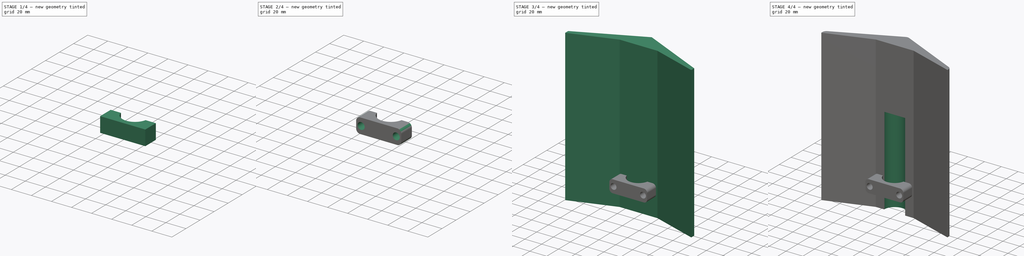
[diagram: build sequence overview — one tinted view per stage of 4, left to right]
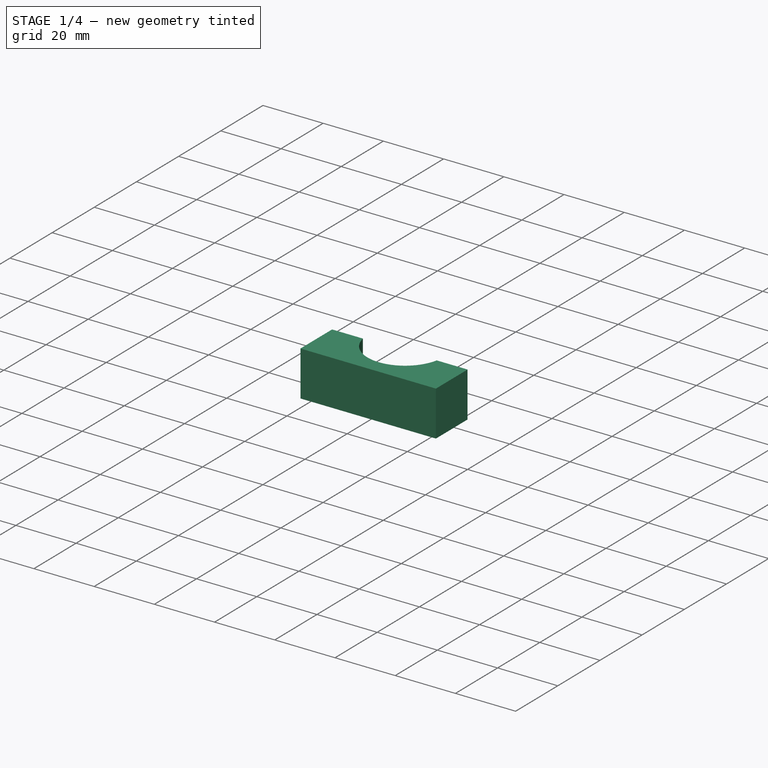
[diagram: stage 1 of 4 — iso view after this stage's code; geometry added in this stage tinted green]
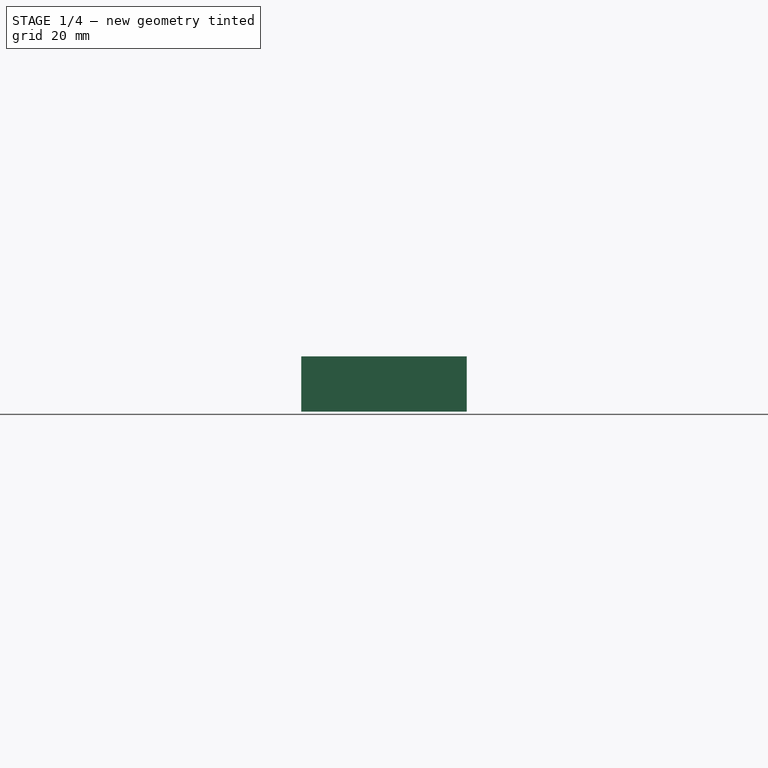
[diagram: stage 1 of 4 — front view after this stage's code; geometry added in this stage tinted green]
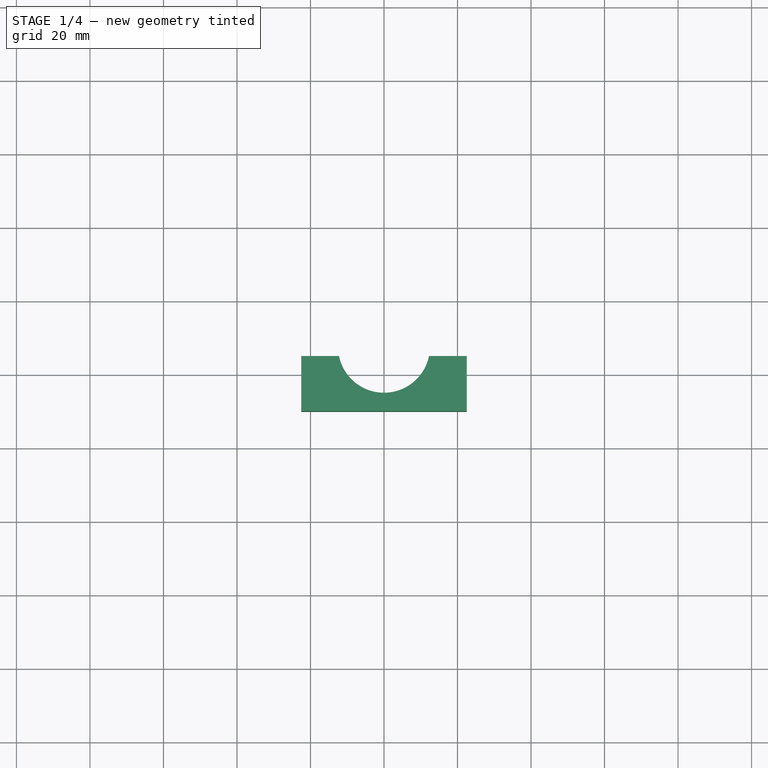
[diagram: stage 1 of 4 — top view after this stage's code; geometry added in this stage tinted green]
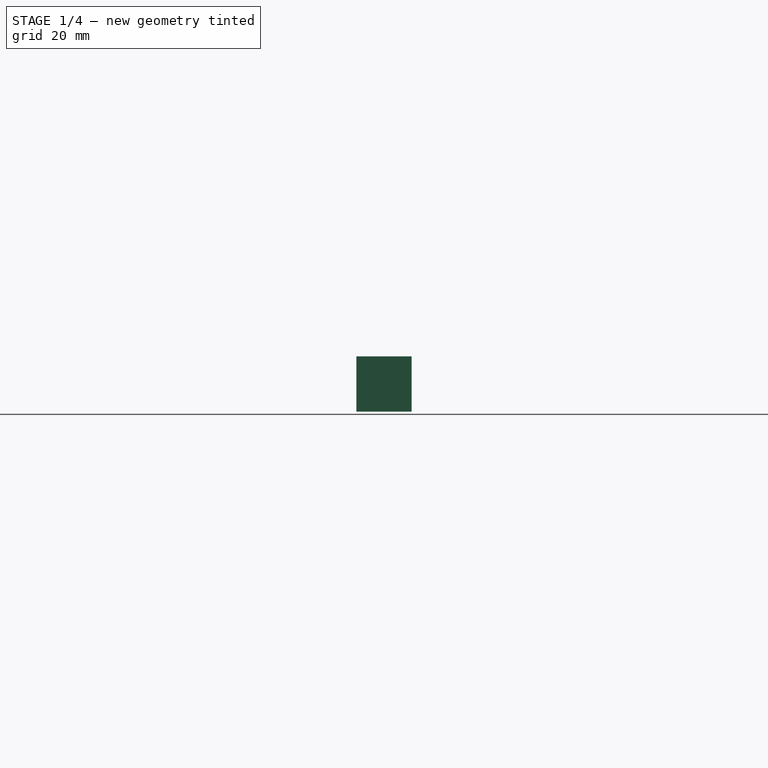
[diagram: stage 1 of 4 — right view after this stage's code; geometry added in this stage tinted green]
FCSTD DOCUMENT  (FreeCAD 0.20R29410 (Git))
Label: CamRoof
License: All rights reserved
LicenseURL: http://en.wikipedia.org/wiki/All_rights_reserved
objects: Sketcher::SketchObject×6, PartDesign::Pad×3, PartDesign::Pocket×3, App::MeasureDistance×2, PartDesign::Fillet×2, PartDesign::Body×2, Spreadsheet::Sheet×1, PartDesign::Hole×1
note: 26 computed .brp shape members not serialized (recipe doc carries the construction recipe); baked Part::Feature solids carry a one-line shape summary decoded from their .brp

FEATURE [Sketcher::SketchObject] Sketch003
  FullyConstrained = true
  MapMode = 5
  Support = -> [XY_Plane001]
  sketch-geometry (4):
    g0: LineSegment StartX=-22.5 StartY=-15 StartZ=0 EndX=22.5 EndY=-15 EndZ=0
    g1: LineSegment StartX=22.5 StartY=-15 StartZ=0 EndX=22.5 EndY=-30 EndZ=0
    g2: LineSegment StartX=22.5 StartY=-30 StartZ=0 EndX=-22.5 EndY=-30 EndZ=0
    g3: LineSegment StartX=-22.5 StartY=-30 StartZ=0 EndX=-22.5 EndY=-15 EndZ=0
  constraints (11):
    c: Coincident(g0,g1)
    c: Coincident(g1,g2)
    c: Coincident(g2,g3)
    c: Coincident(g3,g0)
    c: Horizontal(g2)
    c: Vertical(g1)
    c: Vertical(g3)
    c: DistanceY(g0,g-1) = 15
    c: DistanceX(g0,g0) = 45
    c: DistanceY(g3,g3) = 15
    c: Symmetric(g0,g0,g-2)
FEATURE [PartDesign::Pad] Pad002
  Direction = (0,0,1)
  Length = 15
  Length2 = 10
  Midplane = true
  Profile = -> Sketch003
  ReferenceAxis = -> Sketch003 [N_Axis]
  Type = 0
FEATURE [PartDesign::Pocket] Pocket002
  BaseFeature = -> Pad002
  Direction = (0,0,-1)
  Length = 20
  Length2 = 5
  Midplane = true
  Profile = -> Sketch004
  ReferenceAxis = -> Sketch004 [N_Axis]
  Type = 0
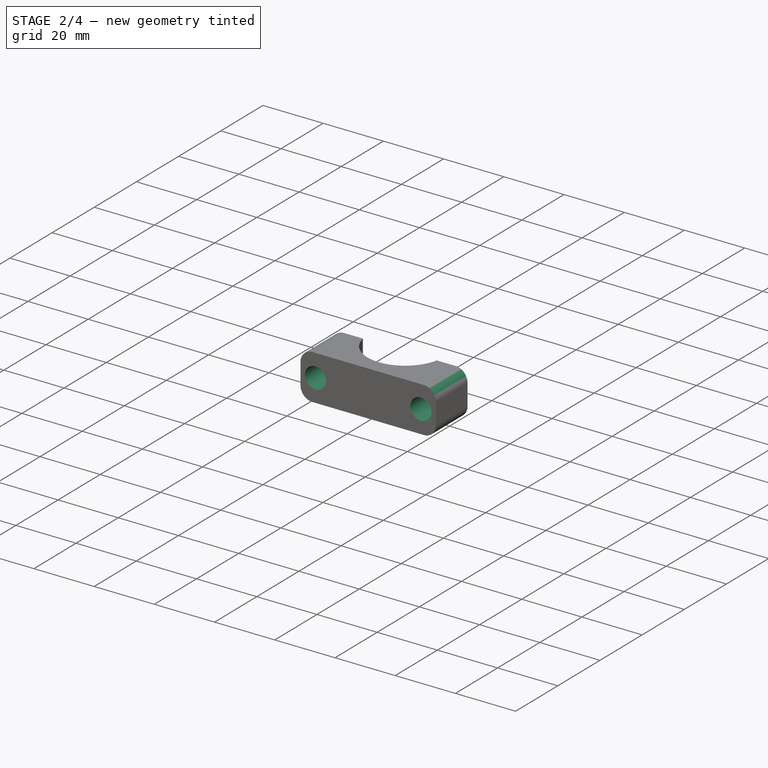
[diagram: stage 2 of 4 — iso view after this stage's code; geometry added in this stage tinted green]
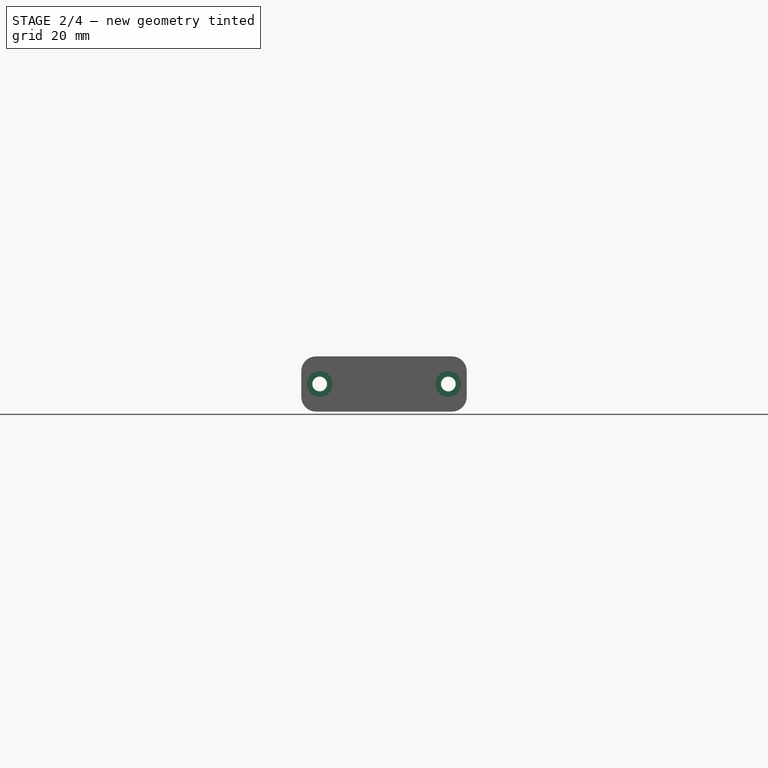
[diagram: stage 2 of 4 — front view after this stage's code; geometry added in this stage tinted green]
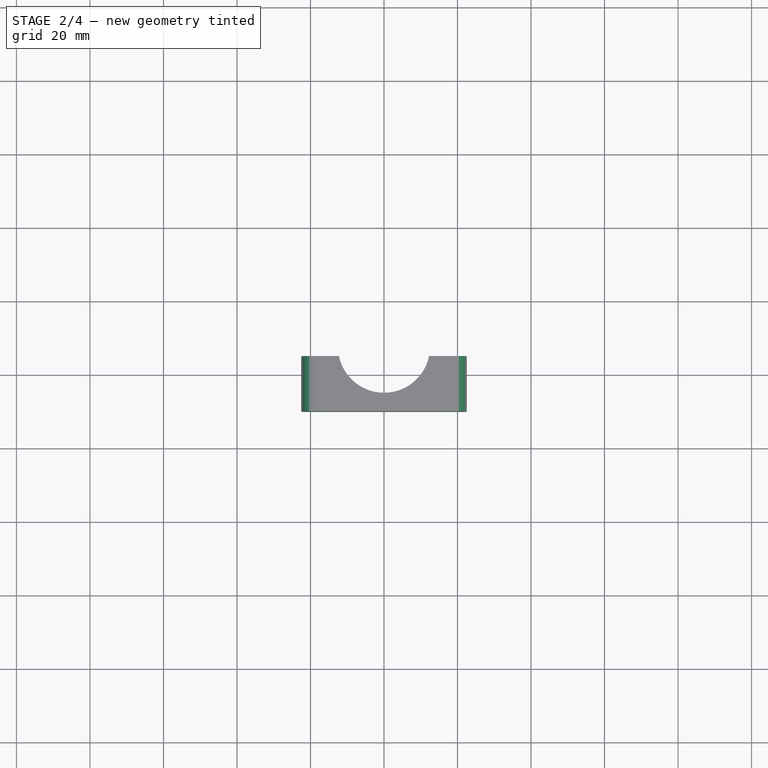
[diagram: stage 2 of 4 — top view after this stage's code; geometry added in this stage tinted green]
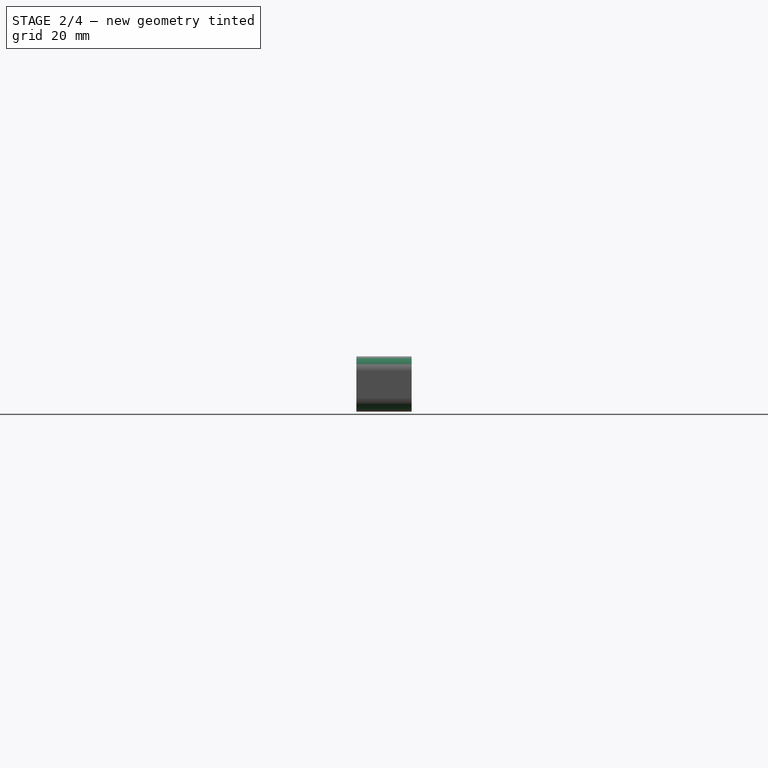
[diagram: stage 2 of 4 — right view after this stage's code; geometry added in this stage tinted green]
FEATURE [Sketcher::SketchObject] Sketch005
  FullyConstrained = true
  MapMode = 5
  Placement = pos=(0,-30,0) rot=(1,0,0;1.5708rad)
  Support = -> [Pocket002]
  expr: Constraints[1] = <<measurements>>.diameter / 2 + 5
  sketch-geometry (2):
    g0: Circle CenterX=-17.5 CenterY=0 CenterZ=0 NormalX=0 NormalY=0 NormalZ=1 AngleXU=0 Radius=2
    g1: Circle CenterX=17.5 CenterY=0 CenterZ=0 NormalX=0 NormalY=0 NormalZ=1 AngleXU=0 Radius=2
  constraints (5):
    c: PointOnObject(g0,g-1)
    c: DistanceX(g0,g-1) = 17.5
    c: Symmetric(g0,g1,g-2)
    c: Diameter(g0) = 4
    c: Equal(g0,g1)
FEATURE [PartDesign::Hole] Hole
  BaseFeature = -> Pocket002
  CustomThreadClearance = 0
  Depth = 25
  DepthType = 0
  Diameter = 4
  DrillForDepth = false
  DrillPoint = 1
  DrillPointAngle = 118
  HoleCutCountersinkAngle = 90
  HoleCutCustomValues = false
  HoleCutDepth = 10
  HoleCutDiameter = 7
  HoleCutType = 1
  ModelThread = false
  Profile = -> Sketch005
  Tapered = false
  TaperedAngle = 90
  ThreadClass = 0
  ThreadDepth = 25
  ThreadDepthType = 0
  ThreadDirection = 0
  ThreadFit = 0
  ThreadSize = 0
  ThreadType = 0
  Threaded = false
  UseCustomThreadClearance = false
FEATURE [PartDesign::Body] Body  label="Roof"
  Group = -> [Sketch,Pad,Pad001,Sketch002,Pocket001,Sketch001,Pocket,Fillet]
  Origin = -> Origin
  Tip = -> Fillet
FEATURE [PartDesign::Fillet] Fillet001
  Base = -> Hole [Edge12,Edge10,Edge16,Edge8]
  BaseFeature = -> Hole
  Radius = 4
  SupportTransform = false
  UseAllEdges = false
FEATURE [PartDesign::Body] Body001  label="fastening bracket"
  Group = -> [Sketch003,Pad002,Sketch004,Pocket002,Sketch005,Hole,Fillet001]
  Origin = -> Origin001
  Tip = -> Fillet001
FEATURE [App::MeasureDistance] Distance001  label="Distance: 180,00 mm"
  Distance = 180
  P1 = (-75,-30,150)
  P2 = (-75,-30,-30)
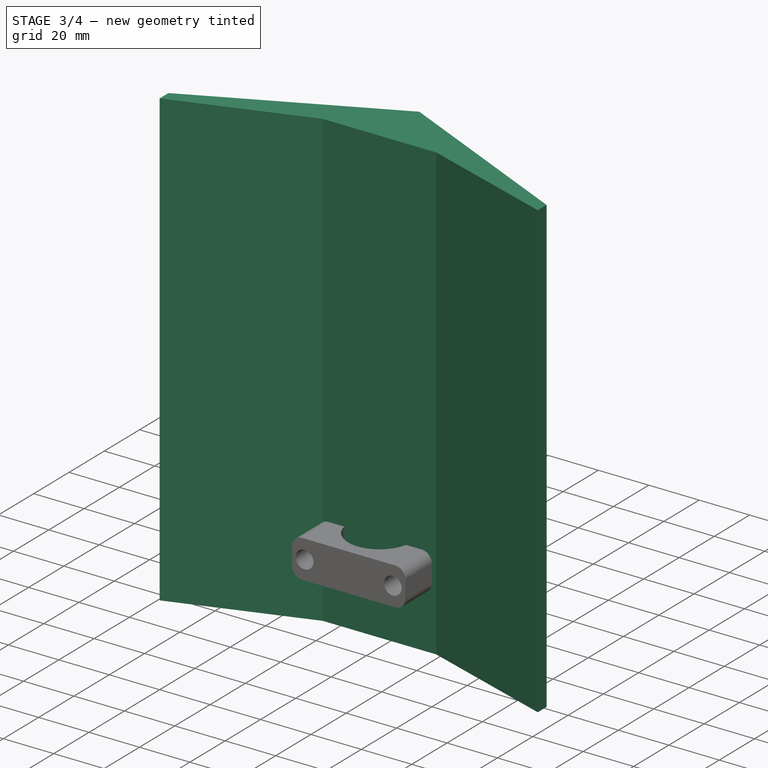
[diagram: stage 3 of 4 — iso view after this stage's code; geometry added in this stage tinted green]
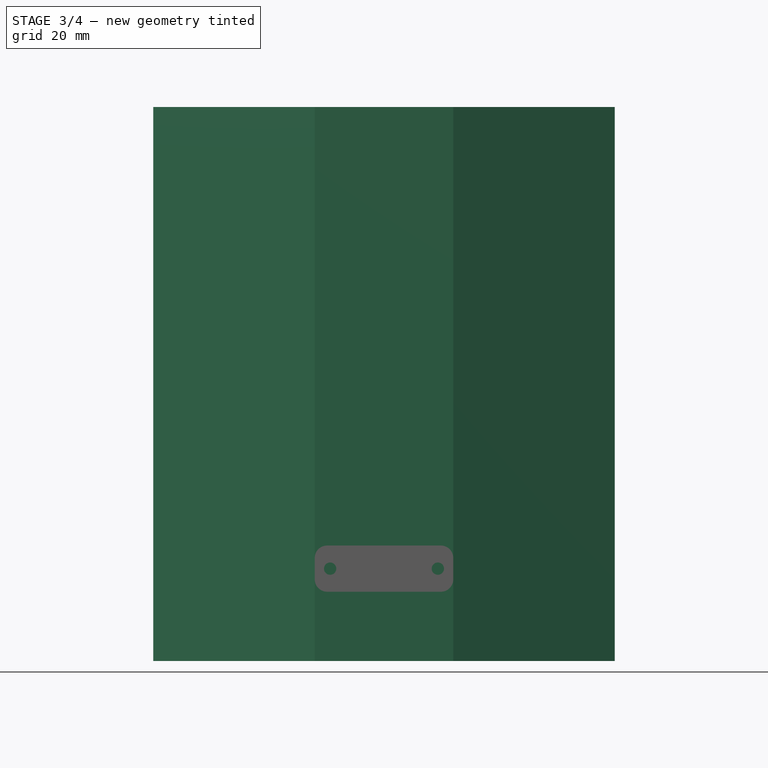
[diagram: stage 3 of 4 — front view after this stage's code; geometry added in this stage tinted green]
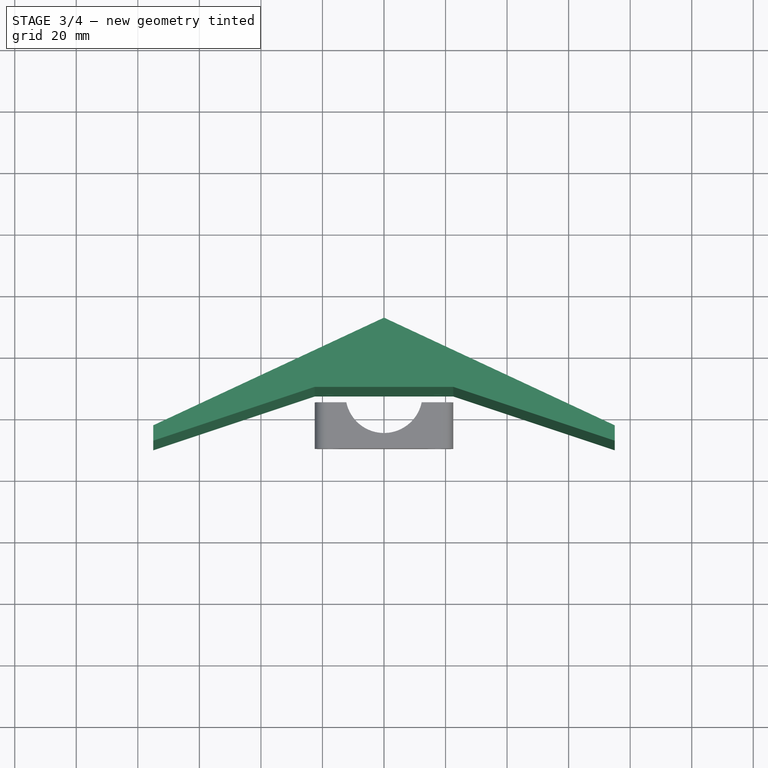
[diagram: stage 3 of 4 — top view after this stage's code; geometry added in this stage tinted green]
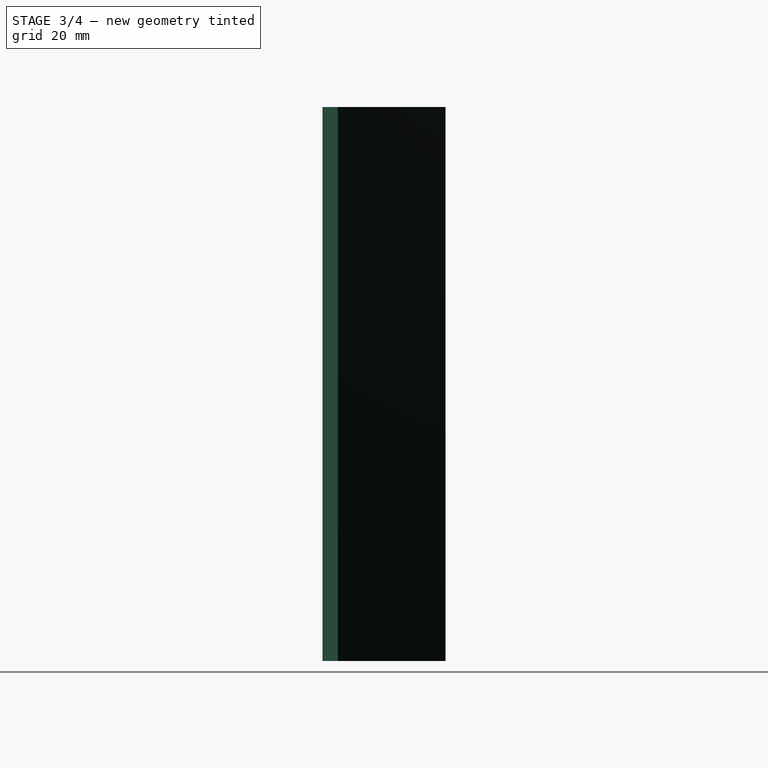
[diagram: stage 3 of 4 — right view after this stage's code; geometry added in this stage tinted green]
FEATURE [Spreadsheet::Sheet] Spreadsheet  label="measurements"
  cells = A1(front_length)=150; A2(back_length)=30; A3(diameter)=25; A4(width)=150; A5=10
FEATURE [Sketcher::SketchObject] Sketch
  FullyConstrained = true
  MapMode = 5
  Support = -> [XY_Plane]
  expr: Constraints[11] = <<measurements>>.width / 2
  expr: Constraints[18] = <<measurements>>.diameter / 2
  expr: Constraints[20] = .Constraints.under_width / 2
  expr: Constraints[4] = <<measurements>>.width
  sketch-geometry (7):
    g0: LineSegment StartX=-75 StartY=-25 StartZ=0 EndX=0 EndY=10 EndZ=0
    g1: LineSegment StartX=0 StartY=10 StartZ=0 EndX=75 EndY=-25 EndZ=0
    g2: LineSegment StartX=-75 StartY=-25 StartZ=0 EndX=-75 EndY=-30 EndZ=0
    g3: LineSegment StartX=75 StartY=-25 StartZ=0 EndX=75 EndY=-30 EndZ=0
    g4: LineSegment StartX=-75 StartY=-30 StartZ=0 EndX=-22.5 EndY=-12.5 EndZ=0
    g5: LineSegment StartX=-22.5 StartY=-12.5 StartZ=0 EndX=22.5 EndY=-12.5 EndZ=0
    g6: LineSegment StartX=22.5 StartY=-12.5 StartZ=0 EndX=75 EndY=-30 EndZ=0
  constraints (21):
    c: PointOnObject(g0,g-2)
    c: Coincident(g0,g1)
    c: Coincident(g2,g0)
    c: Coincident(g3,g1)
    c: DistanceX(g0,g1) = 150
    c: Vertical(g2,g0)
    c: Vertical(g3,g1)
    c: DistanceY(g-1,g0) = 10
    c: DistanceY(g2,g2) = 5
    c: Equal(g3,g2)
    c: DistanceY(g2,g0) = 40
    c: DistanceX(g0,g0) = 75
    c: Horizontal(g3,g2)
    c: Coincident(g2,g4)
    c: Coincident(g4,g5)
    c: Horizontal(g5)
    c: Coincident(g5,g6)
    c: Coincident(g6,g3)
    c: DistanceY(g4,g-1) = 12.5
    c: DistanceX(g5,g5) = 45  'under_width'
    c: DistanceX(g4,g0) = 22.5
FEATURE [PartDesign::Pad] Pad
  Direction = (0,0,1)
  Length = 150
  Length2 = 10
  Profile = -> Sketch
  ReferenceAxis = -> Sketch [N_Axis]
  Type = 0
  expr: Length = <<measurements>>.front_length
FEATURE [PartDesign::Pad] Pad001
  BaseFeature = -> Pad
  Direction = (0,0,1)
  Length = 30
  Length2 = 10
  Profile = -> Sketch
  ReferenceAxis = -> Sketch [N_Axis]
  Reversed = true
  Type = 0
  expr: Length = <<measurements>>.back_length
FEATURE [Sketcher::SketchObject] Sketch001
  FullyConstrained = true
  MapMode = 5
  Support = -> [XY_Plane]
  expr: Constraints[1] = <<measurements>>.diameter
  expr: Constraints[2] = <<measurements>>.diameter / 2
  sketch-geometry (1):
    g0: Circle CenterX=0 CenterY=-12.5 CenterZ=0 NormalX=0 NormalY=0 NormalZ=1 AngleXU=0 Radius=12.5
  constraints (3):
    c: PointOnObject(g0,g-2)
    c: Diameter(g0) = 25
    c: DistanceY(g0,g-1) = 12.5
FEATURE [Sketcher::SketchObject] Sketch002
  FullyConstrained = true
  MapMode = 5
  Placement = pos=(0,0,0) rot=(1,0,0;1.5708rad)
  Support = -> [XZ_Plane]
  expr: Constraints[4] = <<measurements>>.diameter / 2 + 5
  expr: Constraints[5] = <<measurements>>.diameter / 2 + 5
  sketch-geometry (2):
    g0: Circle CenterX=17.5 CenterY=0 CenterZ=0 NormalX=0 NormalY=0 NormalZ=1 AngleXU=0 Radius=1.5
    g1: Circle CenterX=-17.5 CenterY=0 CenterZ=0 NormalX=0 NormalY=0 NormalZ=1 AngleXU=0 Radius=1.5
  constraints (6):
    c: PointOnObject(g0,g-1)
    c: PointOnObject(g1,g-1)
    c: Diameter(g0) = 3
    c: Equal(g0,g1)
    c: DistanceX(g1,g-1) = 17.5
    c: DistanceX(g-1,g0) = 17.5
FEATURE [PartDesign::Pocket] Pocket001
  BaseFeature = -> Pad001
  Direction = (0,1,2e-16)
  Length = 5
  Length2 = 5
  Profile = -> Sketch002
  ReferenceAxis = -> Sketch002 [N_Axis]
  Reversed = true
  Type = 1
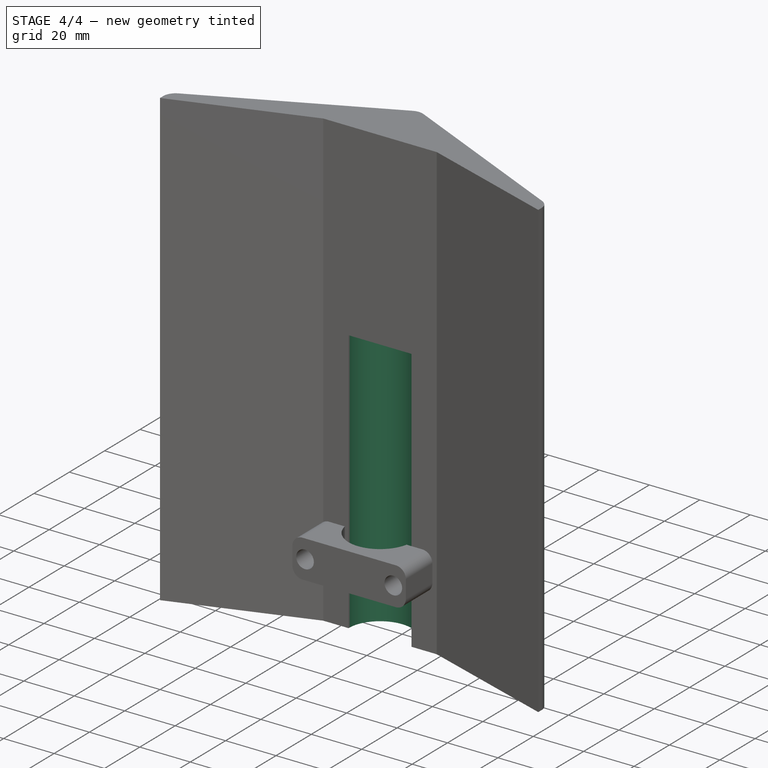
[diagram: stage 4 of 4 — iso view after this stage's code; geometry added in this stage tinted green]
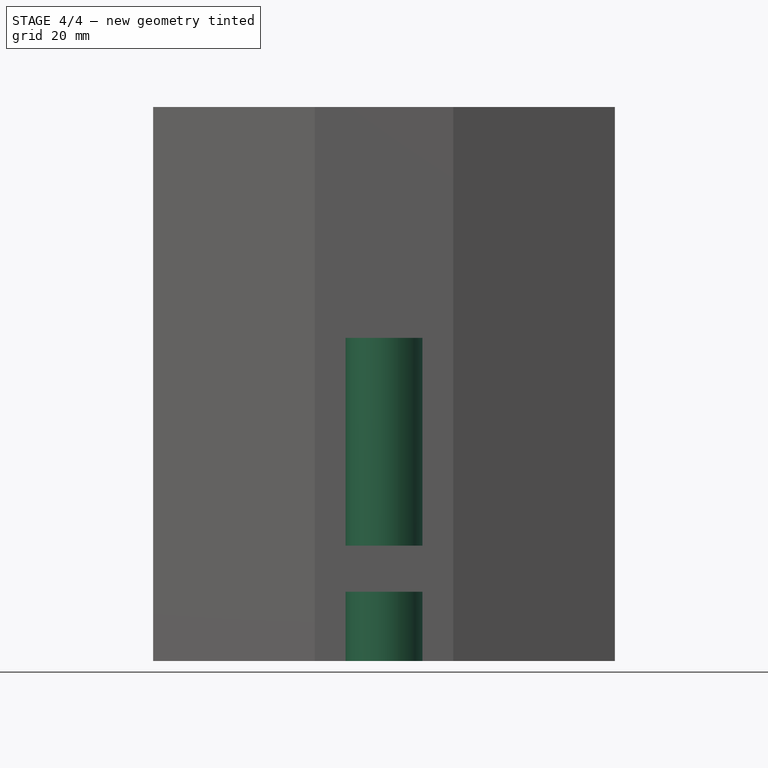
[diagram: stage 4 of 4 — front view after this stage's code; geometry added in this stage tinted green]
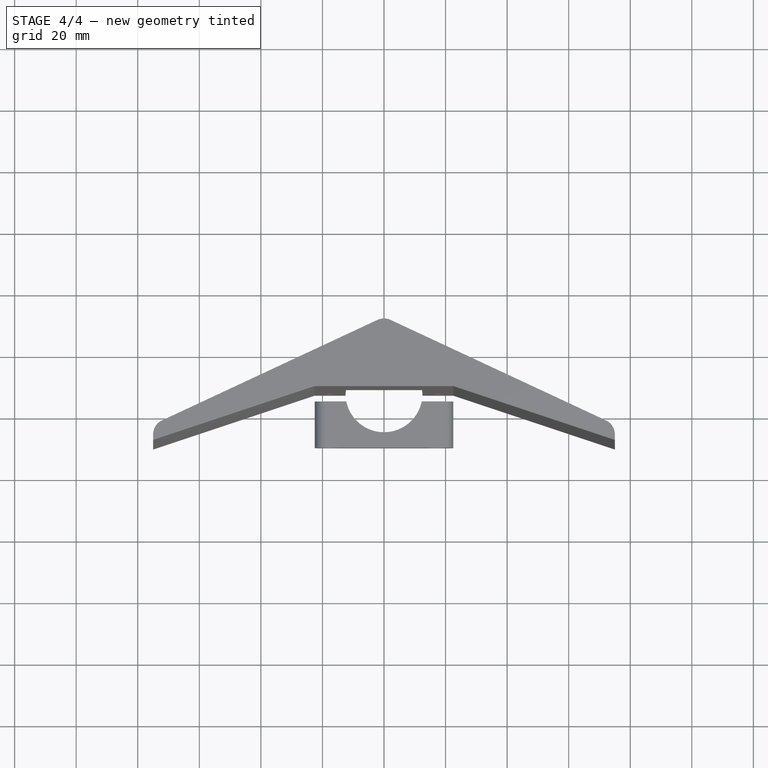
[diagram: stage 4 of 4 — top view after this stage's code; geometry added in this stage tinted green]
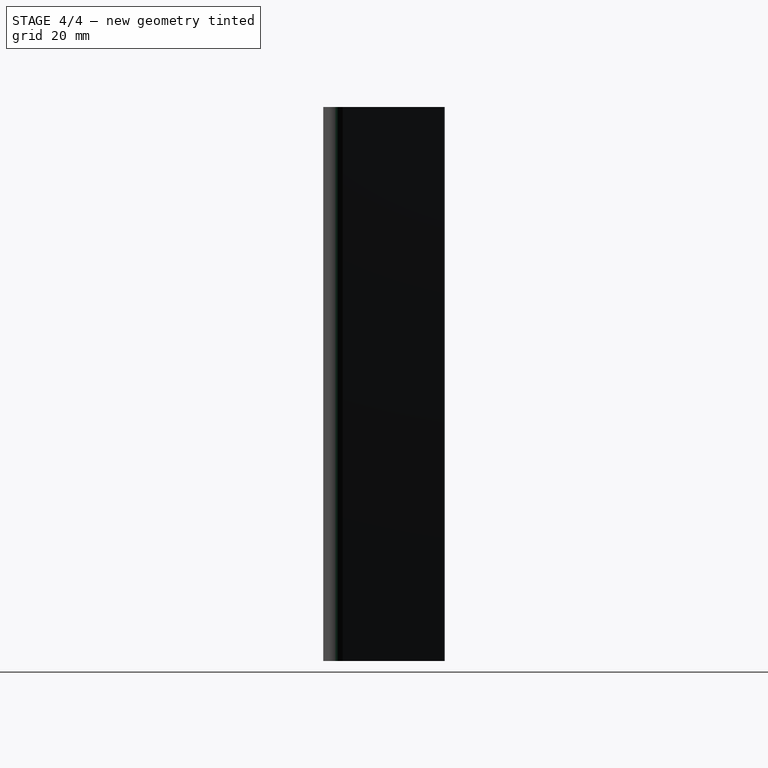
[diagram: stage 4 of 4 — right view after this stage's code; geometry added in this stage tinted green]
FEATURE [Sketcher::SketchObject] Sketch004
  FullyConstrained = true
  MapMode = 5
  Support = -> [XY_Plane001]
  expr: Constraints[1] = <<measurements>>.diameter
  expr: Constraints[2] = <<measurements>>.diameter / 2
  sketch-geometry (1):
    g0: Circle CenterX=0 CenterY=-12.5 CenterZ=0 NormalX=0 NormalY=0 NormalZ=1 AngleXU=0 Radius=12.5
  constraints (3):
    c: PointOnObject(g0,g-2)
    c: Diameter(g0) = 25
    c: DistanceY(g0,g-1) = 12.5
FEATURE [PartDesign::Pocket] Pocket
  BaseFeature = -> Pocket001
  Direction = (0,0,-1)
  Length = 150
  Length2 = 5
  Midplane = true
  Profile = -> Sketch001
  ReferenceAxis = -> Sketch001 [N_Axis]
  Type = 0
FEATURE [App::MeasureDistance] Distance  label="Distance: 14,99 mm"
  Distance = 14.9873
  P1 = (-22.5,-15.0127,7.5)
  P2 = (-22.5,-30,7.5)
FEATURE [PartDesign::Fillet] Fillet
  Base = -> Pocket [Edge8,Edge24,Edge11,Edge1,Edge2,Edge12]
  BaseFeature = -> Pocket
  Radius = 5
  SupportTransform = false
  UseAllEdges = false
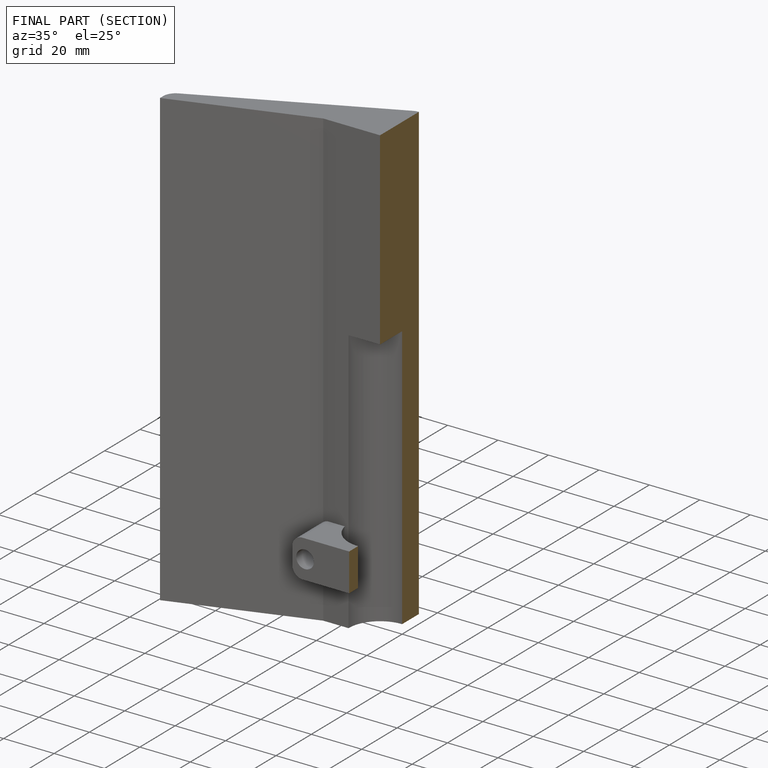
[diagram: finished part — half-section view (interior)]
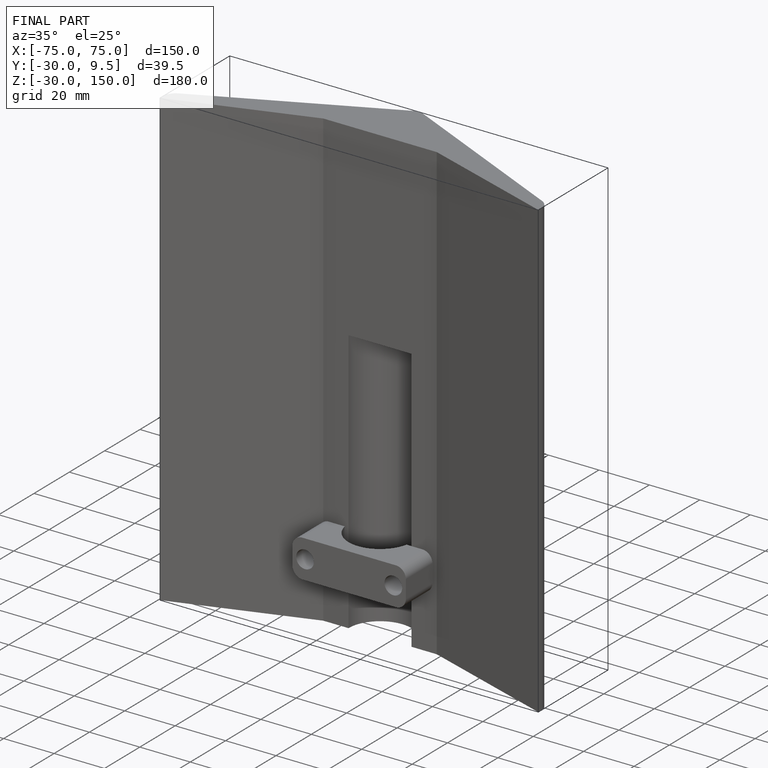
[diagram: finished part — iso view with bounding-box wireframe]
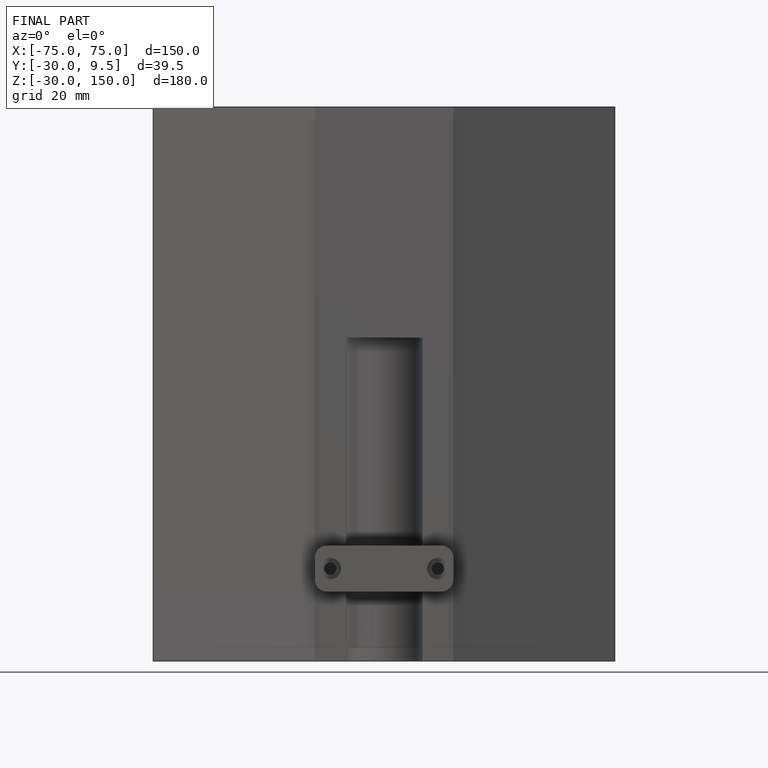
[diagram: finished part — front view with bounding-box wireframe]
